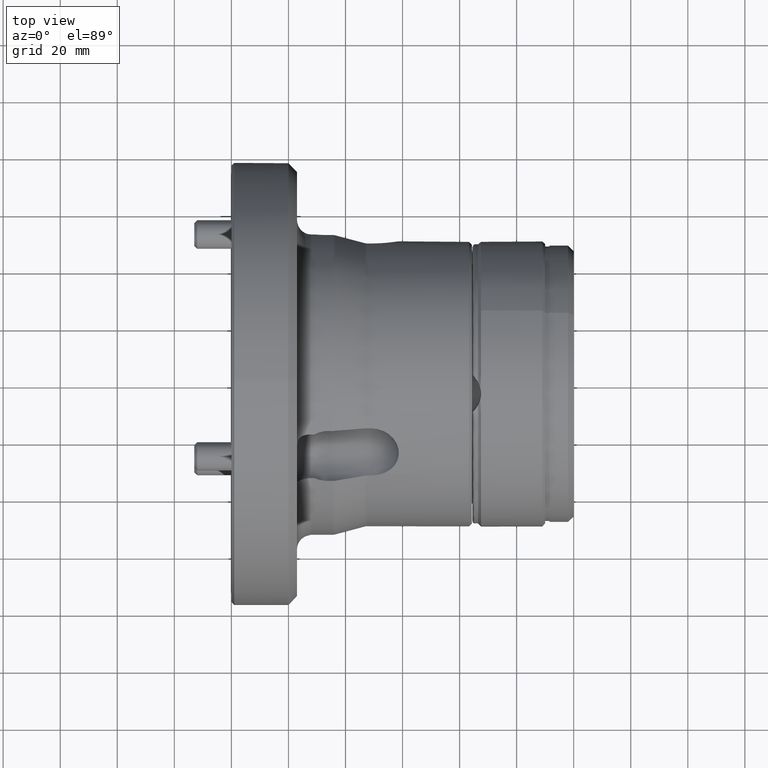
[diagram: clean part render]
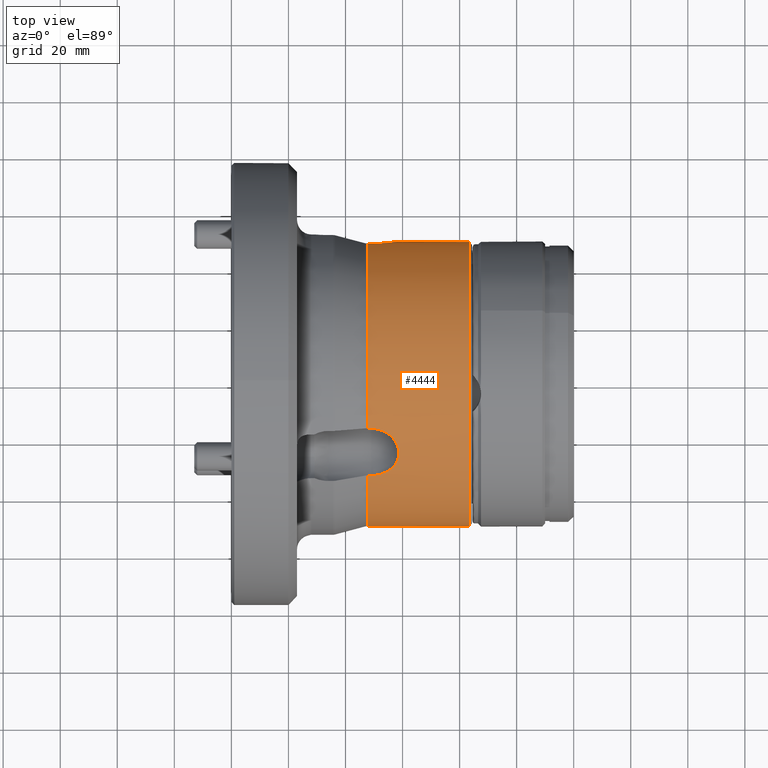
[diagram: same view with one face highlighted and labeled with its STEP entity id]
A machine part, top view. The second image highlights one B-rep face of the part: STEP entity #4444.
In plain terms, the highlighted cylindrical surface (bore or boss wall) has radius 50 mm, axis along (-1, -0, -0).
Its self-contained STEP definition (entity closure, byte-faithful):
#22 = CARTESIAN_POINT ( 'NONE',  ( 47.59110991546880598, -16.37503592591118817, 47.24254648539935175 ) ) ;
#91 = LINE ( 'NONE', #1567, #700 ) ;
#112 = CARTESIAN_POINT ( 'NONE',  ( 49.00000000000000000, -16.37503592591050250, -47.24254648539959334 ) ) ;
#193 = FACE_OUTER_BOUND ( 'NONE', #1033, .T. ) ;
#314 = VECTOR ( 'NONE', #4488, 1000.000000000000000 ) ;
#358 = EDGE_CURVE ( 'NONE', #3630, #476, #4531, .T. ) ;
#394 = VERTEX_POINT ( 'NONE', #4694 ) ;
#476 = VERTEX_POINT ( 'NONE', #4933 ) ;
#539 = CIRCLE ( 'NONE', #3455, 50.00000000000000000 ) ;
#700 = VECTOR ( 'NONE', #1370, 1000.000000000000000 ) ;
#802 = B_SPLINE_CURVE_WITH_KNOTS ( 'NONE', 3,
 ( #5621, #5613, #5607, #5602, #5601, #5596, #5588, #5579, #5574, #5572, #5566, #5557, #5540, #5538, #5532, #5520, #5515, #5514, #5508, #5497, #5491, #5484, #5457, #5451, #5449, #5438, #5431, #5426, #5425, #5419, #5412, #5407, #5406, #5396, #5389, #5382, #5381, #5375, #5366, #5359, #5354, #5343, #5336, #5331, #5330, #5323, #5310, #5305 ),
 .UNSPECIFIED., .F., .F.,
 ( 4, 2, 2, 2, 2, 2, 2, 2, 2, 2, 2, 2, 2, 2, 2, 2, 2, 2, 2, 2, 2, 2, 2, 4 ),
 ( 1.971810369094925170E-07, 0.001875251150907407318, 0.002812778135842645445, 0.003750305120777884440, 0.005625359090648332505, 0.007500413060518780137, 0.009375467030389227768, 0.01031299401532444898, 0.01125052100025966846, 0.01312557497013011956, 0.01500062894000057066, 0.01593815592493578320, 0.01687568290987099748, 0.01875073687974142950, 0.01968826386467664724, 0.02062579084961186499, 0.02156331783454708273, 0.02250084481948230047, 0.02437589878935272555, 0.02531342577428793636, 0.02625095275922314716, 0.02812600672909357571, 0.02906353371402878652, 0.03000106069896399733 ),
 .UNSPECIFIED. ) ;
#856 = CARTESIAN_POINT ( 'NONE',  ( 83.29999999999998295, 41.88830066103167127, -27.30147006538317456 ) ) ;
#862 = CARTESIAN_POINT ( 'NONE',  ( 82.98665042932105962, 41.78275454594301408, -27.46340813655111290 ) ) ;
#872 = CARTESIAN_POINT ( 'NONE',  ( 82.66270036501150287, 41.68839448441732998, -27.60615901595546262 ) ) ;
#880 = CARTESIAN_POINT ( 'NONE',  ( 81.99380904227673739, 41.52293859500194628, -27.85440397384788724 ) ) ;
#893 = CARTESIAN_POINT ( 'NONE',  ( 81.64670620067323625, 41.45156553137335464, -27.96029867352110898 ) ) ;
#897 = LINE ( 'NONE', #3067, #5122 ) ;
#903 = CARTESIAN_POINT ( 'NONE',  ( 80.59489499473312435, 41.27842496091592750, -28.21584626416550279 ) ) ;
#910 = CARTESIAN_POINT ( 'NONE',  ( 79.87727108238783558, 41.21569103007767865, -28.30665962716750172 ) ) ;
#911 = CARTESIAN_POINT ( 'NONE',  ( 78.77567833195556091, 41.20473470449157105, -28.32260368532970674 ) ) ;
#920 = CARTESIAN_POINT ( 'NONE',  ( 78.40906456244339040, 41.21525762650904312, -28.30731961411763820 ) ) ;
#928 = CARTESIAN_POINT ( 'NONE',  ( 77.68736588304881252, 41.26330327218030902, -28.23723796732597435 ) ) ;
#936 = EDGE_CURVE ( 'NONE', #394, #2530, #2904, .T. ) ;
#939 = CARTESIAN_POINT ( 'NONE',  ( 77.33060716585953287, 41.30080530188538290, -28.18247041729162561 ) ) ;
#940 = CARTESIAN_POINT ( 'NONE',  ( 76.62528800803262641, 41.40235122250840050, -28.03307815160188099 ) ) ;
#945 = CARTESIAN_POINT ( 'NONE',  ( 76.27413142783552757, 41.46704950038478898, -27.93747750318364353 ) ) ;
#953 = CARTESIAN_POINT ( 'NONE',  ( 75.59610749596834012, 41.61982419606845696, -27.70936804397765485 ) ) ;
#957 = LINE ( 'NONE', #3122, #5142 ) ;
#962 = CARTESIAN_POINT ( 'NONE',  ( 75.26905265038207915, 41.70764613238509355, -27.57724495659084596 ) ) ;
#964 = CARTESIAN_POINT ( 'NONE',  ( 74.63816218332488006, 41.90446689993470386, -27.27724031371848668 ) ) ;
#970 = CARTESIAN_POINT ( 'NONE',  ( 74.33432655085280771, 42.01346901726498118, -27.10936093056897533 ) ) ;
#980 = CARTESIAN_POINT ( 'NONE',  ( 73.75042528676829079, 42.25192380030036077, -26.73619202695398656 ) ) ;
#998 = CARTESIAN_POINT ( 'NONE',  ( 73.47220473707827182, 42.38084850299941309, -26.53166486705354288 ) ) ;
#1001 = CARTESIAN_POINT ( 'NONE',  ( 72.95536264796407977, 42.65035355632221581, -26.09622390256001978 ) ) ;
#1004 = VERTEX_POINT ( 'NONE', #112 ) ;
#1009 = CARTESIAN_POINT ( 'NONE',  ( 72.71472808858347037, 42.79173139075497545, -25.86407583440108127 ) ) ;
#1012 = EDGE_CURVE ( 'NONE', #2753, #5050, #91, .T. ) ;
#1018 = CARTESIAN_POINT ( 'NONE',  ( 72.26898179693549196, 43.08639586256896337, -25.37016329786183988 ) ) ;
#1033 = EDGE_LOOP ( 'NONE', ( #2365, #2416, #2402, #2380, #2315, #2327, #2251, #2205, #2240, #2166, #2130, #2103 ) ) ;
#1034 = CARTESIAN_POINT ( 'NONE',  ( 72.06263561331596179, 43.24078319964116446, -25.10647082498514493 ) ) ;
#1095 = CARTESIAN_POINT ( 'NONE',  ( 83.29999999999998295, 41.88830066103167127, -27.30147006538317456 ) ) ;
#1126 = CARTESIAN_POINT ( 'NONE',  ( 71.50925630356482543, 43.71242389472056544, -24.28219168990021615 ) ) ;
#1132 = CARTESIAN_POINT ( 'NONE',  ( 49.00000000000000000, -32.72572743286786334, 37.80247034242128024 ) ) ;
#1143 = CARTESIAN_POINT ( 'NONE',  ( 71.22895548099869245, 44.03462686442259155, -23.69496346647781593 ) ) ;
#1162 = CARTESIAN_POINT ( 'NONE',  ( 70.94174419168084000, 44.52380130302135086, -22.75425304686439532 ) ) ;
#1167 = CARTESIAN_POINT ( 'NONE',  ( 49.31700007687808096, -32.72572743286785624, 37.80247034242128024 ) ) ;
#1178 = CARTESIAN_POINT ( 'NONE',  ( 70.86922106853711512, 44.68738637037834138, -22.43139786808800551 ) ) ;
#1179 = CARTESIAN_POINT ( 'NONE',  ( 70.77367656836443643, 45.00636653590117930, -21.78433111592033455 ) ) ;
#1184 = CARTESIAN_POINT ( 'NONE',  ( 70.74987047699472953, 45.16298196323651126, -21.45780235540683023 ) ) ;
#1192 = CARTESIAN_POINT ( 'NONE',  ( 70.75013057830581431, 45.47029056451038542, -20.79867538364706903 ) ) ;
#1197 = CARTESIAN_POINT ( 'NONE',  ( 49.63304422092264190, -32.71424002752121396, 37.81242414887033476 ) ) ;
#1203 = CARTESIAN_POINT ( 'NONE',  ( 70.77455351899355662, 45.62193862068062344, -20.46388892885495991 ) ) ;
#1213 = CARTESIAN_POINT ( 'NONE',  ( 70.87206118758246021, 45.91453811695950549, -19.79866720534331037 ) ) ;
#1214 = CARTESIAN_POINT ( 'NONE',  ( 70.94442912685916269, 46.05449064723754304, -19.47065705632858368 ) ) ;
#1220 = CARTESIAN_POINT ( 'NONE',  ( 71.13486916119028081, 46.32265551316869079, -18.82376639224867887 ) ) ;
#1233 = CARTESIAN_POINT ( 'NONE',  ( 71.25294354083497694, 46.45086521784222811, -18.50488548848324299 ) ) ;
#1240 = CARTESIAN_POINT ( 'NONE',  ( 50.26322801786778172, -32.66832488043461780, 37.85209994305100167 ) ) ;
#1244 = CARTESIAN_POINT ( 'NONE',  ( 71.53573732628534287, 46.69618297109013838, -17.87680514964839418 ) ) ;
#1251 = CARTESIAN_POINT ( 'NONE',  ( 71.70105061840122573, 46.81327691898054155, -17.56746792156530290 ) ) ;
#1253 = CARTESIAN_POINT ( 'NONE',  ( 72.06876531807208153, 47.03047083683713225, -16.97744497660924878 ) ) ;
#1257 = CARTESIAN_POINT ( 'NONE',  ( 72.27214041204412354, 47.13154915030410308, -16.69429477019261654 ) ) ;
#1259 = CARTESIAN_POINT ( 'NONE',  ( 41.49999999999999289, -16.37503592591050605, -47.24254648539959334 ) ) ;
#1264 = CARTESIAN_POINT ( 'NONE',  ( 72.71764840362621385, 47.32012616842607144, -16.15202967387847011 ) ) ;
#1268 = CARTESIAN_POINT ( 'NONE',  ( 50.57716099717575275, -32.63380408833838686, 37.88190097011302271 ) ) ;
#1279 = CARTESIAN_POINT ( 'NONE',  ( 72.96069637704412969, 47.40790295502953455, -15.89205546108449241 ) ) ;
#1280 = CARTESIAN_POINT ( 'NONE',  ( 73.74479403029606317, 47.65034314941148352, -15.15623816222444908 ) ) ;
#1287 = EDGE_CURVE ( 'NONE', #3145, #394, #3477, .T. ) ;
#1298 = CARTESIAN_POINT ( 'NONE',  ( 51.50249933110612233, -32.49747106859813073, 37.99906230010991948 ) ) ;
#1301 = CARTESIAN_POINT ( 'NONE',  ( 74.32401037145451994, 47.78002098514238583, -14.73769428805170634 ) ) ;
#1309 = CARTESIAN_POINT ( 'NONE',  ( 75.27683334854962993, 47.93572094673675821, -14.21967534382422294 ) ) ;
#1315 = CARTESIAN_POINT ( 'NONE',  ( 75.61012364665189978, 47.98109603072443718, -14.06531141658368789 ) ) ;
#1326 = CARTESIAN_POINT ( 'NONE',  ( 76.28640638504028004, 48.05703375405423827, -13.80362518749230816 ) ) ;
#1335 = CARTESIAN_POINT ( 'NONE',  ( 76.63150856593455273, 48.08800971177019790, -13.69494076765451851 ) ) ;
#1338 = CARTESIAN_POINT ( 'NONE',  ( 49.00000000000000000, 49.10076335877862874, 9.440076142978004015 ) ) ;
#1370 = DIRECTION ( 'NONE',  ( 1.000000000000000000, -6.424901762877118962E-17, 1.112825628694189647E-16 ) ) ;
#1384 = CARTESIAN_POINT ( 'NONE',  ( 49.31700007687808096, 49.10076335877862874, 9.440076142978000462 ) ) ;
#1396 = CARTESIAN_POINT ( 'NONE',  ( 77.33557002826967164, 48.13694160778710085, -13.52194266063001216 ) ) ;
#1414 = CARTESIAN_POINT ( 'NONE',  ( 83.29999999999998295, 0.0000000000000000000, 0.0000000000000000000 ) ) ;
#1436 = CARTESIAN_POINT ( 'NONE',  ( 77.69538108113817998, 48.15492410024167924, -13.45752896490526496 ) ) ;
#1468 = CARTESIAN_POINT ( 'NONE',  ( 78.42596050757849468, 48.17769885923448214, -13.37576665354993111 ) ) ;
#1476 = CARTESIAN_POINT ( 'NONE',  ( 78.79007607149223702, 48.18231833393447516, -13.35905111167125447 ) ) ;
#1494 = CARTESIAN_POINT ( 'NONE',  ( 49.63304422092266321, 49.10363990535456225, 9.425150854899708719 ) ) ;
#1503 = CARTESIAN_POINT ( 'NONE',  ( 79.51604539563348339, 48.17866731519649193, -13.37221232139474658 ) ) ;
#1505 = CARTESIAN_POINT ( 'NONE',  ( 79.87789892895273169, 48.17039514489869845, -13.40209363974327417 ) ) ;
#1513 = CARTESIAN_POINT ( 'NONE',  ( 80.59931212428109859, 48.14051363962365571, -13.50903508239342266 ) ) ;
#1514 = CARTESIAN_POINT ( 'NONE',  ( 47.59110991546880598, -32.72572743286786334, 37.80247034242127313 ) ) ;
#1542 = CARTESIAN_POINT ( 'NONE',  ( 52.10223941455768681, -32.36298713365226831, 38.11419674718455042 ) ) ;
#1546 = CARTESIAN_POINT ( 'NONE',  ( 80.96062127108382356, 48.11867546330157808, -13.58689629847024705 ) ) ;
#1567 = CARTESIAN_POINT ( 'NONE',  ( 41.49999999999999289, -16.37503592591117041, 47.24254648539937307 ) ) ;
#1568 = VERTEX_POINT ( 'NONE', #6105 ) ;
#1583 = CARTESIAN_POINT ( 'NONE',  ( 52.97605884689899369, -32.09394023757464254, 38.34048424969353164 ) ) ;
#1593 = CARTESIAN_POINT ( 'NONE',  ( 47.59110991546880598, -32.72572743286733044, -37.80247034242173498 ) ) ;
#1597 = CARTESIAN_POINT ( 'NONE',  ( 82.00994352776643836, 48.03381414407160577, -13.88507890667142064 ) ) ;
#1617 = CARTESIAN_POINT ( 'NONE',  ( 53.26434039736019344, -31.99239719877648014, 38.42535271704905853 ) ) ;
#1623 = CARTESIAN_POINT ( 'NONE',  ( 82.67334028278636993, 47.95182906551284674, -14.16938693641490765 ) ) ;
#1626 = CARTESIAN_POINT ( 'NONE',  ( 47.59110991546880598, 49.10076335877862874, 9.440076142978004015 ) ) ;
#1645 = DIRECTION ( 'NONE',  ( 0.0000000000000000000, 0.0000000000000000000, 1.000000000000000000 ) ) ;
#1655 = CARTESIAN_POINT ( 'NONE',  ( 53.82517507260192957, -31.76801109255565692, 38.61106941250360336 ) ) ;
#1689 = AXIS2_PLACEMENT_3D ( 'NONE', #1962, #1949, #1939 ) ;
#1695 = CARTESIAN_POINT ( 'NONE',  ( 54.09662267017292692, -31.64575812223927898, 38.71143290970588424 ) ) ;
#1729 = CARTESIAN_POINT ( 'NONE',  ( 54.88466189347522572, -31.24881344958370022, 39.03367569431351569 ) ) ;
#1760 = CARTESIAN_POINT ( 'NONE',  ( 55.37520690591355077, -30.94426165169941711, 39.27653911384593499 ) ) ;
#1806 = CARTESIAN_POINT ( 'NONE',  ( 56.05664439900760954, -30.42191274473112372, 39.68067147156848051 ) ) ;
#1813 = CARTESIAN_POINT ( 'NONE',  ( 83.29999999999998295, 47.83942008830151593, -14.53925326882415980 ) ) ;
#1841 = CARTESIAN_POINT ( 'NONE',  ( 56.27288862392646962, -30.23799276224546162, 39.82111475865592354 ) ) ;
#1842 = CARTESIAN_POINT ( 'NONE',  ( 47.59110991546880598, 0.0000000000000000000, 0.0000000000000000000 ) ) ;
#1848 = CARTESIAN_POINT ( 'NONE',  ( 50.26322801786779593, 49.11504257748702429, 9.365549274013877934 ) ) ;
#1877 = CARTESIAN_POINT ( 'NONE',  ( 49.00000000000000000, 49.10076335877862874, 9.440076142978004015 ) ) ;
#1880 = CARTESIAN_POINT ( 'NONE',  ( 50.57716099717574565, 49.12359062793348841, 9.320752877568788008 ) ) ;
#1906 = EDGE_CURVE ( 'NONE', #476, #1004, #802, .T. ) ;
#1923 = CARTESIAN_POINT ( 'NONE',  ( 51.50249933110614364, 49.15688880618185408, 9.144104354100631937 ) ) ;
#1939 = DIRECTION ( 'NONE',  ( 0.0000000000000000000, 0.0000000000000000000, 1.000000000000000000 ) ) ;
#1949 = DIRECTION ( 'NONE',  ( -1.000000000000000000, -0.0000000000000000000, -0.0000000000000000000 ) ) ;
#1962 = CARTESIAN_POINT ( 'NONE',  ( 47.59110991546880598, 0.0000000000000000000, 0.0000000000000000000 ) ) ;
#2083 = CARTESIAN_POINT ( 'NONE',  ( 56.67846895270199781, -29.85503841233373734, 40.10902726705961641 ) ) ;
#2103 = ORIENTED_EDGE ( 'NONE', *, *, #6077, .T. ) ;
#2113 = CARTESIAN_POINT ( 'NONE',  ( 47.59110991546880598, 49.10076335877862874, -9.440076142978000462 ) ) ;
#2126 = CARTESIAN_POINT ( 'NONE',  ( 56.86870252312558449, -29.65532855349533392, 40.25702209701686485 ) ) ;
#2130 = ORIENTED_EDGE ( 'NONE', *, *, #3523, .T. ) ;
#2166 = ORIENTED_EDGE ( 'NONE', *, *, #1012, .T. ) ;
#2171 = CARTESIAN_POINT ( 'NONE',  ( 52.10223941455769392, 49.18935619472621568, 8.970070626499294875 ) ) ;
#2172 = CARTESIAN_POINT ( 'NONE',  ( 57.22413578651505617, -29.23901372411731359, 40.56040453664557077 ) ) ;
#2195 = CYLINDRICAL_SURFACE ( 'NONE', #4038, 50.00000000000000000 ) ;
#2202 = CARTESIAN_POINT ( 'NONE',  ( 57.38933719233166642, -29.02241065324777125, 40.71579265760350097 ) ) ;
#2205 = ORIENTED_EDGE ( 'NONE', *, *, #4185, .T. ) ;
#2238 = CARTESIAN_POINT ( 'NONE',  ( 57.69403965584155713, -28.57140364297674040, 41.03353489199785287 ) ) ;
#2240 = ORIENTED_EDGE ( 'NONE', *, *, #2894, .F. ) ;
#2251 = ORIENTED_EDGE ( 'NONE', *, *, #936, .T. ) ;
#2286 = CARTESIAN_POINT ( 'NONE',  ( 57.83379662502848362, -28.33614702202875080, 41.19643801684880913 ) ) ;
#2315 = ORIENTED_EDGE ( 'NONE', *, *, #5970, .F. ) ;
#2320 = CARTESIAN_POINT ( 'NONE',  ( 58.20481657608944204, -27.61807017966982158, 41.68425521550315693 ) ) ;
#2327 = ORIENTED_EDGE ( 'NONE', *, *, #1287, .T. ) ;
#2365 = ORIENTED_EDGE ( 'NONE', *, *, #3353, .F. ) ;
#2380 = ORIENTED_EDGE ( 'NONE', *, *, #4512, .T. ) ;
#2398 = CARTESIAN_POINT ( 'NONE',  ( 58.39176115134128509, -27.11866483363205660, 42.01139002633453146 ) ) ;
#2402 = ORIENTED_EDGE ( 'NONE', *, *, #1906, .T. ) ;
#2408 = CARTESIAN_POINT ( 'NONE',  ( 52.97605884689897948, 49.25080347241910772, 8.623925428432210438 ) ) ;
#2416 = ORIENTED_EDGE ( 'NONE', *, *, #358, .T. ) ;
#2431 = ORIENTED_EDGE ( 'NONE', *, *, #2539, .T. ) ;
#2435 = CARTESIAN_POINT ( 'NONE',  ( 53.26434039736020054, 49.27353020173015352, 8.493552343577785990 ) ) ;
#2467 = CARTESIAN_POINT ( 'NONE',  ( 53.82517507260191536, 49.32217252479027536, 8.206369927607003234 ) ) ;
#2468 = ORIENTED_EDGE ( 'NONE', *, *, #4710, .T. ) ;
#2508 = B_SPLINE_CURVE_WITH_KNOTS ( 'NONE', 3,
 ( #3887, #3862, #3826, #3794, #3768, #3732, #3696, #3671, #3642, #3432, #3406, #3381, #3346, #3315, #3286, #3250, #3215, #3189, #2902, #2868, #2826, #2789, #2756, #2715, #2669, #2398, #2320, #2286, #2238, #2202, #2172, #2126, #2083, #1841, #1806, #1760, #1729, #1695, #1655, #1617, #1583, #1542, #1298, #1268, #1240, #1197, #1167, #1132 ),
 .UNSPECIFIED., .F., .F.,
 ( 4, 2, 2, 2, 2, 2, 2, 2, 2, 2, 2, 2, 2, 2, 2, 2, 2, 2, 2, 2, 2, 2, 2, 4 ),
 ( 1.971810369086987148E-07, 0.001875251150907352674, 0.002812778135842585164, 0.003750305120777818087, 0.005625359090648265718, 0.007500413060518712483, 0.009375467030389158379, 0.01031299401532437959, 0.01125052100025959907, 0.01312557497013004670, 0.01500062894000049260, 0.01593815592493572075, 0.01687568290987095238, 0.01875073687974140174, 0.01968826386467661949, 0.02062579084961184070, 0.02156331783454705844, 0.02250084481948227619, 0.02437589878935270474, 0.02531342577428791554, 0.02625095275922312635, 0.02812600672909355490, 0.02906353371402877264, 0.03000106069896398345 ),
 .UNSPECIFIED. ) ;
#2530 = VERTEX_POINT ( 'NONE', #1877 ) ;
#2539 = EDGE_CURVE ( 'NONE', #2822, #3048, #4809, .T. ) ;
#2601 = CARTESIAN_POINT ( 'NONE',  ( 54.09662267017290560, 49.34796337782189113, 8.050314001023766153 ) ) ;
#2669 = CARTESIAN_POINT ( 'NONE',  ( 58.58132149950395018, -26.33684339788180395, 42.50253402341287057 ) ) ;
#2714 = CARTESIAN_POINT ( 'NONE',  ( 54.88466189347523994, 49.42856147915058074, 7.545428438303339647 ) ) ;
#2715 = CARTESIAN_POINT ( 'NONE',  ( 58.62939374715472951, -26.06915863457189531, 42.66729011906507907 ) ) ;
#2753 = VERTEX_POINT ( 'NONE', #22 ) ;
#2756 = CARTESIAN_POINT ( 'NONE',  ( 58.69269534451441928, -25.53099789677649412, 42.99147385719333414 ) ) ;
#2776 = DIRECTION ( 'NONE',  ( 0.0000000000000000000, 0.0000000000000000000, 1.000000000000000000 ) ) ;
#2789 = CARTESIAN_POINT ( 'NONE',  ( 58.70810962776858588, -25.26098787335618212, 43.15067022068254232 ) ) ;
#2822 = VERTEX_POINT ( 'NONE', #4076 ) ;
#2826 = CARTESIAN_POINT ( 'NONE',  ( 58.70694602030321363, -24.44818113887499678, 43.61969548642618122 ) ) ;
#2868 = CARTESIAN_POINT ( 'NONE',  ( 58.64344972145997303, -23.90259233528327343, 43.92097124735585822 ) ) ;
#2894 = EDGE_CURVE ( 'NONE', #2753, #3614, #3463, .T. ) ;
#2902 = CARTESIAN_POINT ( 'NONE',  ( 58.38616133683035514, -22.80439821378424980, 44.50106805195751747 ) ) ;
#2904 = B_SPLINE_CURVE_WITH_KNOTS ( 'NONE', 3,
 ( #5762, #5735, #5708, #5683, #5528, #5478, #5447, #5327, #5302, #5273, #5079, #4878, #4854, #4826, #4639, #4542, #4421, #4416, #4396, #4370, #4326, #4072, #3958, #3925, #3894, #3606, #3599, #3511, #3474, #3413, #3249, #3124, #3058, #3013, #2984, #2949, #2714, #2601, #2467, #2435, #2408, #2171, #1923, #1880, #1848, #1494, #1384, #1338 ),
 .UNSPECIFIED., .F., .F.,
 ( 4, 2, 2, 2, 2, 2, 2, 2, 2, 2, 2, 2, 2, 2, 2, 2, 2, 2, 2, 2, 2, 2, 2, 4 ),
 ( 1.971810369085982355E-07, 0.001875251150907340097, 0.002812778135842566949, 0.003750305120777793367, 0.005625359090648228422, 0.007500413060518662176, 0.009375467030389095929, 0.01031299401532431367, 0.01125052100025953142, 0.01312557497012996691, 0.01500062894000040066, 0.01593815592493561667, 0.01687568290987083094, 0.01875073687974126990, 0.01968826386467649112, 0.02062579084961171580, 0.02156331783454694048, 0.02250084481948216170, 0.02437589878935261800, 0.02531342577428784962, 0.02625095275922307778, 0.02812600672909353755, 0.02906353371402877264, 0.03000106069896400079 ),
 .UNSPECIFIED. ) ;
#2949 = CARTESIAN_POINT ( 'NONE',  ( 55.37520690591356498, 49.48661147117346815, 7.160247134801123181 ) ) ;
#2984 = CARTESIAN_POINT ( 'NONE',  ( 56.05664439900758822, 49.57542590596831644, 6.505813532866262072 ) ) ;
#2988 = AXIS2_PLACEMENT_3D ( 'NONE', #1414, #3541, #5391 ) ;
#3013 = CARTESIAN_POINT ( 'NONE',  ( 56.27288862392644120, 49.60509336913421663, 6.276312512226363438 ) ) ;
#3048 = VERTEX_POINT ( 'NONE', #1095 ) ;
#3058 = CARTESIAN_POINT ( 'NONE',  ( 56.67846895270197649, 49.66295574052324469, 5.800708062511214180 ) ) ;
#3067 = CARTESIAN_POINT ( 'NONE',  ( 41.49999999999999289, 49.10076335877862874, 9.440076142978002238 ) ) ;
#3122 = CARTESIAN_POINT ( 'NONE',  ( 41.49999999999999289, -32.72572743286786334, 37.80247034242128024 ) ) ;
#3124 = CARTESIAN_POINT ( 'NONE',  ( 56.86870252312557028, 49.69126809347579155, 5.553756836392334861 ) ) ;
#3145 = VERTEX_POINT ( 'NONE', #2113 ) ;
#3180 = DIRECTION ( 'NONE',  ( -1.000000000000000000, -0.0000000000000000000, -0.0000000000000000000 ) ) ;
#3189 = CARTESIAN_POINT ( 'NONE',  ( 58.19667455939499234, -22.27061882766434664, 44.76995971409018438 ) ) ;
#3208 = CARTESIAN_POINT ( 'NONE',  ( 47.59110991546880598, 0.0000000000000000000, 0.0000000000000000000 ) ) ;
#3215 = CARTESIAN_POINT ( 'NONE',  ( 57.82643033168718461, -21.49504885721228931, 45.14471523410188070 ) ) ;
#3239 = FACE_OUTER_BOUND ( 'NONE', #5643, .T. ) ;
#3249 = CARTESIAN_POINT ( 'NONE',  ( 57.22413578651504196, 49.74584757856732864, 5.041526398364426953 ) ) ;
#3250 = CARTESIAN_POINT ( 'NONE',  ( 57.68853713902905156, -21.24062870540015169, 45.26490493674282334 ) ) ;
#3286 = CARTESIAN_POINT ( 'NONE',  ( 57.38325312623476293, -20.74044744247136407, 45.49626101801241163 ) ) ;
#3315 = CARTESIAN_POINT ( 'NONE',  ( 57.21513722782952271, -20.49399628462765222, 45.60770725266253578 ) ) ;
#3346 = CARTESIAN_POINT ( 'NONE',  ( 56.67775513512993513, -19.78487774051319903, 45.92195543559244442 ) ) ;
#3353 = EDGE_CURVE ( 'NONE', #3630, #3791, #539, .T. ) ;
#3381 = CARTESIAN_POINT ( 'NONE',  ( 56.27286580517997550, -19.34663505921064086, 46.10745652946528139 ) ) ;
#3399 = DIRECTION ( 'NONE',  ( -1.000000000000000000, 6.424901762876962422E-17, 1.112825628694198275E-16 ) ) ;
#3406 = CARTESIAN_POINT ( 'NONE',  ( 55.37189628999695401, -18.54019477106444924, 46.43760344356504532 ) ) ;
#3413 = CARTESIAN_POINT ( 'NONE',  ( 57.38933719233165931, 49.77211610332846448, 4.776248575974711308 ) ) ;
#3432 = CARTESIAN_POINT ( 'NONE',  ( 54.87109651315071090, -18.17035437143237786, 46.58276296821657780 ) ) ;
#3455 = AXIS2_PLACEMENT_3D ( 'NONE', #3208, #3180, #2776 ) ;
#3463 = CIRCLE ( 'NONE', #1689, 50.00000000000000000 ) ;
#3474 = CARTESIAN_POINT ( 'NONE',  ( 57.69403965584152161, 49.82178544503365458, 4.226793930597949611 ) ) ;
#3477 = LINE ( 'NONE', #3738, #5806 ) ;
#3511 = CARTESIAN_POINT ( 'NONE',  ( 57.83379662502846230, 49.84523537903645973, 3.941604158023033655 ) ) ;
#3523 = EDGE_CURVE ( 'NONE', #5050, #1568, #2508, .T. ) ;
#3541 = DIRECTION ( 'NONE',  ( -1.000000000000000000, -0.0000000000000000000, -0.0000000000000000000 ) ) ;
#3551 = VECTOR ( 'NONE', #3399, 1000.000000000000000 ) ;
#3574 = DIRECTION ( 'NONE',  ( 1.000000000000000000, 1.284980352575412946E-16, 0.0000000000000000000 ) ) ;
#3599 = CARTESIAN_POINT ( 'NONE',  ( 58.20481657608945625, 49.90865904429465871, 3.075822771343705408 ) ) ;
#3606 = CARTESIAN_POINT ( 'NONE',  ( 58.39176115134128509, 49.94226342791794337, 2.479757649473559589 ) ) ;
#3614 = VERTEX_POINT ( 'NONE', #1626 ) ;
#3630 = VERTEX_POINT ( 'NONE', #1593 ) ;
#3642 = CARTESIAN_POINT ( 'NONE',  ( 53.81907942908958375, -17.53522256772117771, 46.82554381143868483 ) ) ;
#3671 = CARTESIAN_POINT ( 'NONE',  ( 53.26402109689533404, -17.26542242746353750, 46.92504960763096733 ) ) ;
#3696 = CARTESIAN_POINT ( 'NONE',  ( 52.38749067501107959, -16.93443517881615179, 47.04507071143397212 ) ) ;
#3732 = CARTESIAN_POINT ( 'NONE',  ( 52.08678823921025725, -16.83628833218177334, 47.08022154173375640 ) ) ;
#3738 = CARTESIAN_POINT ( 'NONE',  ( 41.49999999999999289, 49.10076335877862874, -9.440076142978002238 ) ) ;
#3762 = CIRCLE ( 'NONE', #2988, 50.00000000000000000 ) ;
#3768 = CARTESIAN_POINT ( 'NONE',  ( 51.48293344602880239, -16.66916848480498103, 47.13965090291053883 ) ) ;
#3769 = CARTESIAN_POINT ( 'NONE',  ( 47.59110991546880598, -16.37503592591049539, -47.24254648539958623 ) ) ;
#3791 = VERTEX_POINT ( 'NONE', #1514 ) ;
#3794 = CARTESIAN_POINT ( 'NONE',  ( 51.17847378462747088, -16.59959306542330992, 47.16414963202664268 ) ) ;
#3815 = CARTESIAN_POINT ( 'NONE',  ( 49.00000000000000000, -16.37503592591116686, 47.24254648539936596 ) ) ;
#3826 = CARTESIAN_POINT ( 'NONE',  ( 50.25766348187718080, -16.43209669093943504, 47.22287793155990698 ) ) ;
#3862 = CARTESIAN_POINT ( 'NONE',  ( 49.63395235947263728, -16.37503592591117396, 47.24254648539937307 ) ) ;
#3887 = CARTESIAN_POINT ( 'NONE',  ( 49.00000000000000000, -16.37503592591116686, 47.24254648539936596 ) ) ;
#3888 = DIRECTION ( 'NONE',  ( -1.000000000000000000, -0.0000000000000000000, -0.0000000000000000000 ) ) ;
#3894 = CARTESIAN_POINT ( 'NONE',  ( 58.58132149950395018, 49.97669588842887123, 1.557108426351444086 ) ) ;
#3925 = CARTESIAN_POINT ( 'NONE',  ( 58.62939374715472951, 49.98553647103707220, 1.242908573292936580 ) ) ;
#3958 = CARTESIAN_POINT ( 'NONE',  ( 58.69269534451441928, 49.99720745485225137, 0.6147558339786189929 ) ) ;
#4038 = AXIS2_PLACEMENT_3D ( 'NONE', #4187, #5965, #1645 ) ;
#4072 = CARTESIAN_POINT ( 'NONE',  ( 58.70810962776859299, 50.00007053811384594, 0.3013221126755880053 ) ) ;
#4076 = CARTESIAN_POINT ( 'NONE',  ( 83.29999999999998295, 47.83942008830151593, -14.53925326882415980 ) ) ;
#4185 = EDGE_CURVE ( 'NONE', #2530, #3614, #897, .T. ) ;
#4187 = CARTESIAN_POINT ( 'NONE',  ( 0.0000000000000000000, 0.0000000000000000000, 0.0000000000000000000 ) ) ;
#4318 = CIRCLE ( 'NONE', #5373, 50.00000000000000000 ) ;
#4326 = CARTESIAN_POINT ( 'NONE',  ( 58.70694602030319231, 49.99985496602395330, -0.6371018006240013465 ) ) ;
#4370 = CARTESIAN_POINT ( 'NONE',  ( 58.64344972145995882, 49.98797302673769138, -1.260233445019627530 ) ) ;
#4396 = CARTESIAN_POINT ( 'NONE',  ( 58.38616133683034803, 49.94125453542740445, -2.501345854825358206 ) ) ;
#4416 = CARTESIAN_POINT ( 'NONE',  ( 58.19667455939497813, 49.90723185264015882, -3.098058194287996781 ) ) ;
#4421 = CARTESIAN_POINT ( 'NONE',  ( 57.82643033168718461, 49.84399466795272104, -3.957099251117662586 ) ) ;
#4444 = ADVANCED_FACE ( 'NONE', ( #3239, #193 ), #2195, .T. ) ;
#4488 = DIRECTION ( 'NONE',  ( 1.000000000000000000, -6.424901762876962422E-17, -1.112825628694198275E-16 ) ) ;
#4497 = CARTESIAN_POINT ( 'NONE',  ( 41.49999999999999289, -32.72572743286734465, -37.80247034242173498 ) ) ;
#4512 = EDGE_CURVE ( 'NONE', #1004, #5876, #5669, .T. ) ;
#4531 = LINE ( 'NONE', #4497, #314 ) ;
#4542 = CARTESIAN_POINT ( 'NONE',  ( 57.68853713902903735, 49.82087192780696938, -4.237528417142134352 ) ) ;
#4639 = CARTESIAN_POINT ( 'NONE',  ( 57.38325312623476293, 49.77114154004206625, -4.786376137970243860 ) ) ;
#4694 = CARTESIAN_POINT ( 'NONE',  ( 49.00000000000000000, 49.10076335877862874, -9.440076142978004015 ) ) ;
#4710 = EDGE_CURVE ( 'NONE', #3048, #2822, #3762, .T. ) ;
#4809 = B_SPLINE_CURVE_WITH_KNOTS ( 'NONE', 3,
 ( #1813, #1623, #1597, #1546, #1513, #1505, #1503, #1476, #1468, #1436, #1396, #1335, #1326, #1315, #1309, #1301, #1280, #1279, #1264, #1257, #1253, #1251, #1244, #1233, #1220, #1214, #1213, #1203, #1192, #1184, #1179, #1178, #1162, #1143, #1126, #1034, #1018, #1009, #1001, #998, #980, #970, #964, #962, #953, #945, #940, #939, #928, #920, #911, #910, #903, #893, #880, #872, #862, #856 ),
 .UNSPECIFIED., .F., .F.,
 ( 4, 2, 2, 2, 2, 2, 2, 2, 2, 2, 2, 2, 2, 2, 2, 2, 2, 2, 2, 2, 2, 2, 2, 2, 2, 2, 2, 2, 4 ),
 ( 0.0000000000000000000, 0.002177878328162303600, 0.003266817492243434800, 0.004355756656324566434, 0.005444695820405697634, 0.006533634984486828834, 0.007622574148567960901, 0.008711513312649091234, 0.01088939164081132067, 0.01197833080489243626, 0.01306726996897355358, 0.01415620913305467091, 0.01524514829713578823, 0.01633408746121690555, 0.01742302662529802287, 0.01851196578937913673, 0.01960090495346025405, 0.02177878328162249563, 0.02286772244570360255, 0.02395666160978471640, 0.02504560077386582331, 0.02613453993794693370, 0.02722347910202804061, 0.02831241826610915099, 0.02940135743019025791, 0.03049029659427137176, 0.03266817492243358906, 0.03375711408651469597, 0.03484605325059580289 ),
 .UNSPECIFIED. ) ;
#4826 = CARTESIAN_POINT ( 'NONE',  ( 57.21513722782953693, 49.74443123148333257, -5.055532218780053988 ) ) ;
#4854 = CARTESIAN_POINT ( 'NONE',  ( 56.67775513512992802, 49.66201886893649231, -5.826770983742753707 ) ) ;
#4878 = CARTESIAN_POINT ( 'NONE',  ( 56.27286580517996128, 49.60354618800892013, -6.299050825709800350 ) ) ;
#4933 = CARTESIAN_POINT ( 'NONE',  ( 49.00000000000000000, -32.72572743286733754, -37.80247034242173498 ) ) ;
#4937 = DIRECTION ( 'NONE',  ( -1.000000000000000000, -1.284980352575412946E-16, -0.0000000000000000000 ) ) ;
#4986 = DIRECTION ( 'NONE',  ( -1.000000000000000000, 6.424901762877118962E-17, -1.112825628694189647E-16 ) ) ;
#5050 = VERTEX_POINT ( 'NONE', #3815 ) ;
#5079 = CARTESIAN_POINT ( 'NONE',  ( 55.37189628999694690, 49.48624165852725554, -7.162522058929527091 ) ) ;
#5122 = VECTOR ( 'NONE', #4937, 1000.000000000000000 ) ;
#5142 = VECTOR ( 'NONE', #4986, 1000.000000000000000 ) ;
#5273 = CARTESIAN_POINT ( 'NONE',  ( 54.87109651315069669, 49.42703329466069562, -7.555393002682455617 ) ) ;
#5302 = CARTESIAN_POINT ( 'NONE',  ( 53.81907942908956244, 49.31972177058764117, -8.226823701058837202 ) ) ;
#5305 = CARTESIAN_POINT ( 'NONE',  ( 49.00000000000000000, -16.37503592591050250, -47.24254648539959334 ) ) ;
#5310 = CARTESIAN_POINT ( 'NONE',  ( 49.31700007687806675, -16.37503592591049895, -47.24254648539957913 ) ) ;
#5323 = CARTESIAN_POINT ( 'NONE',  ( 49.63304422092266321, -16.38939987783307117, -47.23757500377035967 ) ) ;
#5327 = CARTESIAN_POINT ( 'NONE',  ( 53.26402109689533404, 49.27099624778516329, -8.510230374562716804 ) ) ;
#5330 = CARTESIAN_POINT ( 'NONE',  ( 50.26322801786779593, -16.44671769705214359, -47.21764921706517981 ) ) ;
#5331 = CARTESIAN_POINT ( 'NONE',  ( 50.57716099717574565, -16.48978653959483864, -47.20265384768211447 ) ) ;
#5336 = CARTESIAN_POINT ( 'NONE',  ( 51.50249933110614364, -16.65941773758343913, -47.14316665421086583 ) ) ;
#5343 = CARTESIAN_POINT ( 'NONE',  ( 52.10223941455770102, -16.82636906107368091, -47.08426737368417037 ) ) ;
#5354 = CARTESIAN_POINT ( 'NONE',  ( 52.97605884689897948, -17.15686323484422005, -46.96440967812605294 ) ) ;
#5359 = CARTESIAN_POINT ( 'NONE',  ( 53.26434039736018633, -17.28113300295341759, -46.91890506062714650 ) ) ;
#5366 = CARTESIAN_POINT ( 'NONE',  ( 53.82517507260192247, -17.55416143223437331, -46.81743934011092279 ) ) ;
#5373 = AXIS2_PLACEMENT_3D ( 'NONE', #1842, #3888, #5704 ) ;
#5375 = CARTESIAN_POINT ( 'NONE',  ( 54.09662267017291981, -17.70220525558238833, -46.76174691072995415 ) ) ;
#5381 = CARTESIAN_POINT ( 'NONE',  ( 54.88466189347523283, -18.17974802956662117, -46.57910413261718219 ) ) ;
#5382 = CARTESIAN_POINT ( 'NONE',  ( 55.37520690591356498, -18.54234981947378813, -46.43678624864735838 ) ) ;
#5389 = CARTESIAN_POINT ( 'NONE',  ( 56.05664439900760243, -19.15351316123696890, -46.18648500443504190 ) ) ;
#5391 = DIRECTION ( 'NONE',  ( 0.0000000000000000000, 0.0000000000000000000, 1.000000000000000000 ) ) ;
#5396 = CARTESIAN_POINT ( 'NONE',  ( 56.27288862392645541, -19.36710060688852408, -46.09742727088259784 ) ) ;
#5406 = CARTESIAN_POINT ( 'NONE',  ( 56.67846895270197649, -19.80791732818928352, -45.90973532957114145 ) ) ;
#5407 = CARTESIAN_POINT ( 'NONE',  ( 56.86870252312559160, -20.03593953998020893, -45.81077893340951590 ) ) ;
#5412 = CARTESIAN_POINT ( 'NONE',  ( 57.22413578651504906, -20.50683385444978413, -45.60193093501031569 ) ) ;
#5419 = CARTESIAN_POINT ( 'NONE',  ( 57.38933719233165220, -20.74970545008045875, -45.49204123357853291 ) ) ;
#5425 = CARTESIAN_POINT ( 'NONE',  ( 57.69403965584152871, -21.25038180205671168, -45.26032882259612222 ) ) ;
#5426 = CARTESIAN_POINT ( 'NONE',  ( 57.83379662502846941, -21.50908835700749222, -45.13804217487216164 ) ) ;
#5431 = CARTESIAN_POINT ( 'NONE',  ( 58.20481657608944914, -22.29058886462460976, -44.76007798684720740 ) ) ;
#5438 = CARTESIAN_POINT ( 'NONE',  ( 58.39176115134127798, -22.82359859428567006, -44.49114767580843477 ) ) ;
#5447 = CARTESIAN_POINT ( 'NONE',  ( 52.38749067501107248, 49.20944394834509694, -8.856884292121556257 ) ) ;
#5449 = CARTESIAN_POINT ( 'NONE',  ( 58.58132149950395018, -23.63985249054686122, -44.05964244976464528 ) ) ;
#5451 = CARTESIAN_POINT ( 'NONE',  ( 58.62939374715472240, -23.91637783646497439, -43.91019869235834960 ) ) ;
#5457 = CARTESIAN_POINT ( 'NONE',  ( 58.69269534451441928, -24.46620955807554054, -43.60622969117228820 ) ) ;
#5478 = CARTESIAN_POINT ( 'NONE',  ( 52.08678823921026435, 49.19081203703165528, -8.959457369758148104 ) ) ;
#5484 = CARTESIAN_POINT ( 'NONE',  ( 58.70810962776858588, -24.73908266475745776, -43.45199233335845435 ) ) ;
#5491 = CARTESIAN_POINT ( 'NONE',  ( 58.70694602030321363, -25.55167382714877533, -42.98259368580250595 ) ) ;
#5497 = CARTESIAN_POINT ( 'NONE',  ( 58.64344972145998014, -26.08538069145423322, -42.66073780233656265 ) ) ;
#5508 = CARTESIAN_POINT ( 'NONE',  ( 58.38616133683036935, -27.13685632164298056, -41.99972219713252741 ) ) ;
#5514 = CARTESIAN_POINT ( 'NONE',  ( 58.19667455939498524, -27.63661302497564876, -41.67190151980256729 ) ) ;
#5515 = CARTESIAN_POINT ( 'NONE',  ( 57.82643033168717750, -28.34894581074024700, -41.18761598298459603 ) ) ;
#5520 = CARTESIAN_POINT ( 'NONE',  ( 57.68853713902905156, -28.58024322240665427, -41.02737651960104159 ) ) ;
#5528 = CARTESIAN_POINT ( 'NONE',  ( 51.48293344602880239, 49.15871944985301667, -9.133902083651422643 ) ) ;
#5532 = CARTESIAN_POINT ( 'NONE',  ( 57.38325312623477004, -29.03069409757053876, -40.70988488004253014 ) ) ;
#5538 = CARTESIAN_POINT ( 'NONE',  ( 57.21513722782954403, -29.25043494685552758, -40.55217503388286104 ) ) ;
#5540 = CARTESIAN_POINT ( 'NONE',  ( 56.67775513512994223, -29.87714112842315117, -40.09518445185004509 ) ) ;
#5557 = CARTESIAN_POINT ( 'NONE',  ( 56.27286580517997550, -30.25691112879811229, -39.80840570375585230 ) ) ;
#5566 = CARTESIAN_POINT ( 'NONE',  ( 55.37189628999696112, -30.94604688746264642, -39.27508138463588949 ) ) ;
#5572 = CARTESIAN_POINT ( 'NONE',  ( 54.87109651315071090, -31.25667892322818986, -39.02736996553448279 ) ) ;
#5574 = CARTESIAN_POINT ( 'NONE',  ( 53.81907942908958375, -31.78449920286633557, -38.59872011038022066 ) ) ;
#5579 = CARTESIAN_POINT ( 'NONE',  ( 53.26402109689531983, -32.00557382032147302, -38.41481923306862001 ) ) ;
#5588 = CARTESIAN_POINT ( 'NONE',  ( 52.38749067501107959, -32.27500876952883146, -38.18818641931277114 ) ) ;
#5596 = CARTESIAN_POINT ( 'NONE',  ( 52.08678823921025725, -32.35452370484972562, -38.12076417197597067 ) ) ;
#5601 = CARTESIAN_POINT ( 'NONE',  ( 51.48293344602880239, -32.48955096504791129, -38.00574881925950166 ) ) ;
#5602 = CARTESIAN_POINT ( 'NONE',  ( 51.17847378462747798, -32.54555519651371753, -37.95774410315405589 ) ) ;
#5607 = CARTESIAN_POINT ( 'NONE',  ( 50.25766348187719501, -32.68016358307256297, -37.84205213757586961 ) ) ;
#5613 = CARTESIAN_POINT ( 'NONE',  ( 49.63395235947263728, -32.72572743286733754, -37.80247034242174209 ) ) ;
#5621 = CARTESIAN_POINT ( 'NONE',  ( 49.00000000000000000, -32.72572743286733754, -37.80247034242173498 ) ) ;
#5643 = EDGE_LOOP ( 'NONE', ( #2468, #2431 ) ) ;
#5669 = LINE ( 'NONE', #1259, #3551 ) ;
#5683 = CARTESIAN_POINT ( 'NONE',  ( 51.17847378462749219, 49.14514826193715891, -9.206405528872961597 ) ) ;
#5704 = DIRECTION ( 'NONE',  ( 0.0000000000000000000, 0.0000000000000000000, 1.000000000000000000 ) ) ;
#5708 = CARTESIAN_POINT ( 'NONE',  ( 50.25766348187718791, 49.11226027401210814, -9.380825793984433503 ) ) ;
#5735 = CARTESIAN_POINT ( 'NONE',  ( 49.63395235947264439, 49.10076335877862874, -9.440076142978000462 ) ) ;
#5762 = CARTESIAN_POINT ( 'NONE',  ( 49.00000000000000000, 49.10076335877862874, -9.440076142978004015 ) ) ;
#5806 = VECTOR ( 'NONE', #3574, 1000.000000000000000 ) ;
#5876 = VERTEX_POINT ( 'NONE', #3769 ) ;
#5965 = DIRECTION ( 'NONE',  ( -1.000000000000000000, -0.0000000000000000000, -0.0000000000000000000 ) ) ;
#5970 = EDGE_CURVE ( 'NONE', #3145, #5876, #4318, .T. ) ;
#6077 = EDGE_CURVE ( 'NONE', #1568, #3791, #957, .T. ) ;
#6105 = CARTESIAN_POINT ( 'NONE',  ( 49.00000000000000000, -32.72572743286786334, 37.80247034242128024 ) ) ;